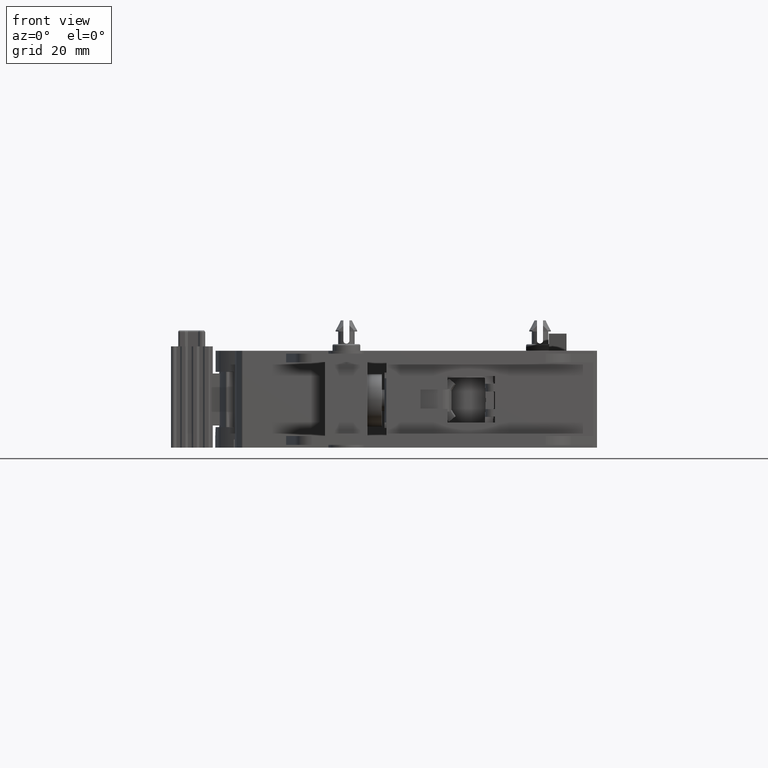
[diagram: clean part render]
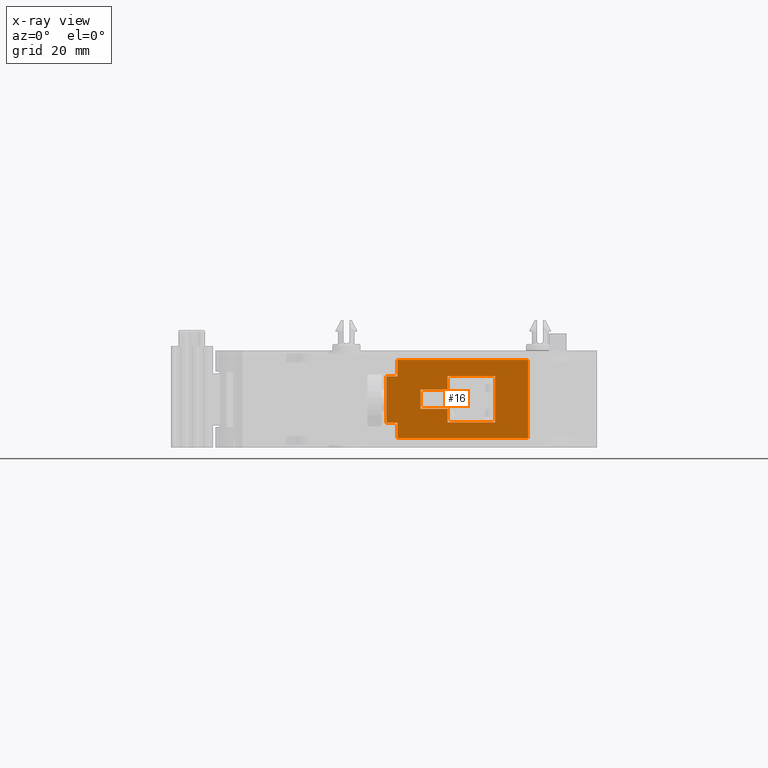
[diagram: x-ray — body ghosted, one internal face saturated and labeled with its STEP entity id]
A machine part, front view, then the same camera in x-ray: the body is ghosted and one INTERNAL B-rep face — a face not visible from any outside direction — is saturated and labeled: STEP entity #16.
In plain terms, the highlighted planar face has unit normal (0, 1, 0).
Its self-contained STEP definition (entity closure, byte-faithful):
#16 = ADVANCED_FACE ( 'NONE', ( #15730, #5631 ), #706, .T. ) ;
#75 = CARTESIAN_POINT ( 'NONE',  ( 0.5275590551181099652, -1.496062992125984259, 0.6240157480314960647 ) ) ;
#175 = ORIENTED_EDGE ( 'NONE', *, *, #25205, .T. ) ;
#518 = DIRECTION ( 'NONE',  ( -1.000000000000000000, -7.209299500779263537E-15, -1.304303365396095441E-16 ) ) ;
#570 = LINE ( 'NONE', #5318, #15866 ) ;
#622 = VERTEX_POINT ( 'NONE', #22050 ) ;
#688 = EDGE_CURVE ( 'NONE', #23935, #15847, #21897, .T. ) ;
#706 = PLANE ( 'NONE',  #31302 ) ;
#1523 = ORIENTED_EDGE ( 'NONE', *, *, #12983, .F. ) ;
#1551 = EDGE_CURVE ( 'NONE', #11032, #28197, #16592, .T. ) ;
#2552 = CARTESIAN_POINT ( 'NONE',  ( 0.8858267716535430658, -1.496062992125984481, 0.2755905511811023167 ) ) ;
#2767 = LINE ( 'NONE', #27444, #18719 ) ;
#3183 = CARTESIAN_POINT ( 'NONE',  ( 0.5275590551181100762, -1.496062992125984259, 0.1791338582677165503 ) ) ;
#3477 = VECTOR ( 'NONE', #15381, 39.37007874015748143 ) ;
#3951 = ORIENTED_EDGE ( 'NONE', *, *, #10253, .T. ) ;
#4272 = CARTESIAN_POINT ( 'NONE',  ( 1.458501341620004110, -1.496062992125984481, 0.06692913385826783357 ) ) ;
#4383 = CARTESIAN_POINT ( 'NONE',  ( 0.6929133858267714219, -1.496062992125984259, 0.0000000000000000000 ) ) ;
#4629 = LINE ( 'NONE', #24704, #20587 ) ;
#4744 = CARTESIAN_POINT ( 'NONE',  ( -2.436938464495277912E-16, -1.496062992125984259, 0.2755905511811023167 ) ) ;
#5115 = EDGE_CURVE ( 'NONE', #18778, #19131, #4629, .T. ) ;
#5318 = CARTESIAN_POINT ( 'NONE',  ( 1.458501341620004110, -1.496062992125984481, 0.6240157480314961758 ) ) ;
#5604 = VERTEX_POINT ( 'NONE', #27284 ) ;
#5631 = FACE_BOUND ( 'NONE', #24552, .T. ) ;
#6034 = EDGE_CURVE ( 'NONE', #15847, #8298, #570, .T. ) ;
#6062 = ORIENTED_EDGE ( 'NONE', *, *, #20985, .T. ) ;
#6094 = ORIENTED_EDGE ( 'NONE', *, *, #1551, .T. ) ;
#6224 = ORIENTED_EDGE ( 'NONE', *, *, #688, .F. ) ;
#6492 = ORIENTED_EDGE ( 'NONE', *, *, #8342, .T. ) ;
#6708 = ORIENTED_EDGE ( 'NONE', *, *, #30774, .T. ) ;
#7373 = VECTOR ( 'NONE', #26728, 39.37007874015748143 ) ;
#7406 = DIRECTION ( 'NONE',  ( 1.225952986556047499E-16, -1.996956013433496707E-32, -1.000000000000000000 ) ) ;
#7825 = CARTESIAN_POINT ( 'NONE',  ( 1.224409448818897461, -1.496062992125984481, 0.1791338582677165503 ) ) ;
#8135 = VECTOR ( 'NONE', #30251, 39.37007874015748143 ) ;
#8298 = VERTEX_POINT ( 'NONE', #75 ) ;
#8342 = EDGE_CURVE ( 'NONE', #28197, #18778, #22949, .T. ) ;
#8546 = EDGE_CURVE ( 'NONE', #8298, #13541, #27171, .T. ) ;
#8701 = EDGE_CURVE ( 'NONE', #13674, #12687, #23228, .T. ) ;
#9854 = VECTOR ( 'NONE', #32011, 39.37007874015748143 ) ;
#10253 = EDGE_CURVE ( 'NONE', #622, #28945, #23997, .T. ) ;
#10313 = LINE ( 'NONE', #20275, #8135 ) ;
#10534 = CARTESIAN_POINT ( 'NONE',  ( 0.5275590551181100762, -1.496062992125983815, 0.5059055118110236116 ) ) ;
#10635 = ORIENTED_EDGE ( 'NONE', *, *, #18450, .F. ) ;
#11032 = VERTEX_POINT ( 'NONE', #2552 ) ;
#11159 = CARTESIAN_POINT ( 'NONE',  ( 0.4488188976377952555, -1.496062992125984259, 0.1791338582677165503 ) ) ;
#11250 = DIRECTION ( 'NONE',  ( 0.0000000000000000000, -0.0000000000000000000, -1.000000000000000000 ) ) ;
#11254 = EDGE_CURVE ( 'NONE', #12687, #5604, #14122, .T. ) ;
#12687 = VERTEX_POINT ( 'NONE', #11159 ) ;
#12983 = EDGE_CURVE ( 'NONE', #13541, #5604, #28295, .T. ) ;
#13143 = DIRECTION ( 'NONE',  ( 1.000000000000000000, -1.628900973636317131E-16, 0.0000000000000000000 ) ) ;
#13541 = VERTEX_POINT ( 'NONE', #10534 ) ;
#13674 = VERTEX_POINT ( 'NONE', #3183 ) ;
#13731 = ORIENTED_EDGE ( 'NONE', *, *, #5115, .T. ) ;
#13940 = CARTESIAN_POINT ( 'NONE',  ( 1.458501341620004110, -1.496062992125984481, 0.06692913385826783357 ) ) ;
#14122 = LINE ( 'NONE', #26710, #16182 ) ;
#14159 = LINE ( 'NONE', #14474, #32204 ) ;
#14261 = VERTEX_POINT ( 'NONE', #15305 ) ;
#14474 = CARTESIAN_POINT ( 'NONE',  ( -9.734484678894202748E-17, -1.496062992125984259, 0.4133858267716539192 ) ) ;
#14575 = DIRECTION ( 'NONE',  ( 0.0000000000000000000, 0.0000000000000000000, 1.000000000000000000 ) ) ;
#15305 = CARTESIAN_POINT ( 'NONE',  ( 0.8858267716535430658, -1.496062992125984481, 0.5098425196850394636 ) ) ;
#15381 = DIRECTION ( 'NONE',  ( -1.000000000000000000, -7.209299500779263537E-15, -1.304303365396095441E-16 ) ) ;
#15571 = CARTESIAN_POINT ( 'NONE',  ( -2.436938464495277912E-16, -1.496062992125984259, 0.0000000000000000000 ) ) ;
#15620 = VECTOR ( 'NONE', #11250, 39.37007874015748143 ) ;
#15730 = FACE_OUTER_BOUND ( 'NONE', #16735, .T. ) ;
#15847 = VERTEX_POINT ( 'NONE', #30330 ) ;
#15866 = VECTOR ( 'NONE', #25564, 39.37007874015748143 ) ;
#16182 = VECTOR ( 'NONE', #19198, 39.37007874015748143 ) ;
#16592 = LINE ( 'NONE', #19219, #7373 ) ;
#16735 = EDGE_LOOP ( 'NONE', ( #1523, #31883, #18669, #6224, #23990, #10635, #29831, #18913 ) ) ;
#17145 = CARTESIAN_POINT ( 'NONE',  ( 1.458501341620004110, -1.496062992125984481, 0.06692913385826783357 ) ) ;
#17241 = DIRECTION ( 'NONE',  ( -1.000000000000000000, 1.628900973636317131E-16, 3.540251991789404377E-16 ) ) ;
#17740 = CARTESIAN_POINT ( 'NONE',  ( 0.8858267716535430658, -1.496062992125984481, 0.1791338582677165503 ) ) ;
#18450 = EDGE_CURVE ( 'NONE', #13674, #31735, #10313, .T. ) ;
#18669 = ORIENTED_EDGE ( 'NONE', *, *, #6034, .F. ) ;
#18719 = VECTOR ( 'NONE', #25153, 39.37007874015748143 ) ;
#18778 = VERTEX_POINT ( 'NONE', #7825 ) ;
#18913 = ORIENTED_EDGE ( 'NONE', *, *, #11254, .T. ) ;
#18919 = CARTESIAN_POINT ( 'NONE',  ( 1.224409448818897461, -1.496062992125984481, 0.5098425196850394636 ) ) ;
#19127 = VECTOR ( 'NONE', #7406, 39.37007874015748143 ) ;
#19131 = VERTEX_POINT ( 'NONE', #18919 ) ;
#19198 = DIRECTION ( 'NONE',  ( -2.090028284309406488E-16, 0.0000000000000000000, 1.000000000000000000 ) ) ;
#19219 = CARTESIAN_POINT ( 'NONE',  ( 0.8858267716535430658, -1.496062992125984481, 0.0000000000000000000 ) ) ;
#20275 = CARTESIAN_POINT ( 'NONE',  ( 0.5275590551181100762, -1.496062992125984259, 0.06692913385826772255 ) ) ;
#20497 = CARTESIAN_POINT ( 'NONE',  ( 0.8858267716535430658, -1.496062992125984481, 0.0000000000000000000 ) ) ;
#20587 = VECTOR ( 'NONE', #14575, 39.37007874015748143 ) ;
#20810 = DIRECTION ( 'NONE',  ( 0.0000000000000000000, 0.0000000000000000000, -1.000000000000000000 ) ) ;
#20954 = VECTOR ( 'NONE', #22051, 39.37007874015748143 ) ;
#20985 = EDGE_CURVE ( 'NONE', #22034, #622, #14159, .T. ) ;
#21747 = LINE ( 'NONE', #17145, #20954 ) ;
#21897 = LINE ( 'NONE', #4272, #29243 ) ;
#21949 = CARTESIAN_POINT ( 'NONE',  ( 0.5275590551181100762, -1.496062992125984259, 0.06692913385826772255 ) ) ;
#22034 = VERTEX_POINT ( 'NONE', #26597 ) ;
#22050 = CARTESIAN_POINT ( 'NONE',  ( 0.6929133858267714219, -1.496062992125984259, 0.4133858267716536417 ) ) ;
#22051 = DIRECTION ( 'NONE',  ( 1.000000000000000000, -1.628900973636317131E-16, 1.192139688483093683E-16 ) ) ;
#22364 = LINE ( 'NONE', #4744, #9854 ) ;
#22702 = VECTOR ( 'NONE', #22944, 39.37007874015748143 ) ;
#22907 = EDGE_CURVE ( 'NONE', #28945, #11032, #22364, .T. ) ;
#22944 = DIRECTION ( 'NONE',  ( 0.0000000000000000000, -0.0000000000000000000, -1.000000000000000000 ) ) ;
#22949 = LINE ( 'NONE', #30313, #30598 ) ;
#23228 = LINE ( 'NONE', #28310, #3477 ) ;
#23429 = LINE ( 'NONE', #20497, #22702 ) ;
#23935 = VERTEX_POINT ( 'NONE', #13940 ) ;
#23990 = ORIENTED_EDGE ( 'NONE', *, *, #29745, .F. ) ;
#23997 = LINE ( 'NONE', #4383, #15620 ) ;
#24552 = EDGE_LOOP ( 'NONE', ( #175, #6708, #6062, #3951, #30902, #6094, #6492, #13731 ) ) ;
#24704 = CARTESIAN_POINT ( 'NONE',  ( 1.224409448818897461, -1.496062992125984481, 0.0000000000000000000 ) ) ;
#25153 = DIRECTION ( 'NONE',  ( -1.000000000000000000, 1.628900973636317131E-16, 2.017120320903262963E-16 ) ) ;
#25205 = EDGE_CURVE ( 'NONE', #19131, #14261, #2767, .T. ) ;
#25564 = DIRECTION ( 'NONE',  ( -1.000000000000000000, 1.628900973636317131E-16, -1.467248847363807591E-16 ) ) ;
#25782 = CARTESIAN_POINT ( 'NONE',  ( 0.6929133858267714219, -1.496062992125984259, 0.2755905511811023167 ) ) ;
#26597 = CARTESIAN_POINT ( 'NONE',  ( 0.8858267716535430658, -1.496062992125984481, 0.4133858267716533641 ) ) ;
#26710 = CARTESIAN_POINT ( 'NONE',  ( 0.4488188976377952555, -1.496062992125984259, 0.1791338582677165503 ) ) ;
#26728 = DIRECTION ( 'NONE',  ( 0.0000000000000000000, -0.0000000000000000000, -1.000000000000000000 ) ) ;
#27171 = LINE ( 'NONE', #21949, #19127 ) ;
#27284 = CARTESIAN_POINT ( 'NONE',  ( 0.4488188976377951445, -1.496062992125984259, 0.5059055118110236116 ) ) ;
#27444 = CARTESIAN_POINT ( 'NONE',  ( -1.408524757578062214E-16, -1.496062992125984259, 0.5098425196850396857 ) ) ;
#27454 = VECTOR ( 'NONE', #518, 39.37007874015748143 ) ;
#28197 = VERTEX_POINT ( 'NONE', #17740 ) ;
#28295 = LINE ( 'NONE', #28451, #27454 ) ;
#28310 = CARTESIAN_POINT ( 'NONE',  ( 0.5488188976377952333, -1.496062992125983371, 0.1791338582677165503 ) ) ;
#28451 = CARTESIAN_POINT ( 'NONE',  ( 0.5488188976377952333, -1.496062992125983371, 0.5059055118110236116 ) ) ;
#28945 = VERTEX_POINT ( 'NONE', #25782 ) ;
#29243 = VECTOR ( 'NONE', #31857, 39.37007874015748143 ) ;
#29745 = EDGE_CURVE ( 'NONE', #31735, #23935, #21747, .T. ) ;
#29831 = ORIENTED_EDGE ( 'NONE', *, *, #8701, .T. ) ;
#29955 = CARTESIAN_POINT ( 'NONE',  ( 0.5275590551181100762, -1.496062992125984259, 0.06692913385826772255 ) ) ;
#30129 = DIRECTION ( 'NONE',  ( 1.628900973636317131E-16, 1.000000000000000000, 0.0000000000000000000 ) ) ;
#30251 = DIRECTION ( 'NONE',  ( 1.225952986556047499E-16, -1.996956013433496707E-32, -1.000000000000000000 ) ) ;
#30313 = CARTESIAN_POINT ( 'NONE',  ( -2.436938464495277912E-16, -1.496062992125984259, 0.1791338582677165503 ) ) ;
#30330 = CARTESIAN_POINT ( 'NONE',  ( 1.458501341620004110, -1.496062992125984481, 0.6240157480314961758 ) ) ;
#30598 = VECTOR ( 'NONE', #13143, 39.37007874015748143 ) ;
#30774 = EDGE_CURVE ( 'NONE', #14261, #22034, #23429, .T. ) ;
#30902 = ORIENTED_EDGE ( 'NONE', *, *, #22907, .T. ) ;
#31302 = AXIS2_PLACEMENT_3D ( 'NONE', #15571, #30129, #20810 ) ;
#31735 = VERTEX_POINT ( 'NONE', #29955 ) ;
#31857 = DIRECTION ( 'NONE',  ( 0.0000000000000000000, 0.0000000000000000000, 1.000000000000000000 ) ) ;
#31883 = ORIENTED_EDGE ( 'NONE', *, *, #8546, .F. ) ;
#32011 = DIRECTION ( 'NONE',  ( 1.000000000000000000, -1.628900973636317131E-16, 0.0000000000000000000 ) ) ;
#32204 = VECTOR ( 'NONE', #17241, 39.37007874015748143 ) ;